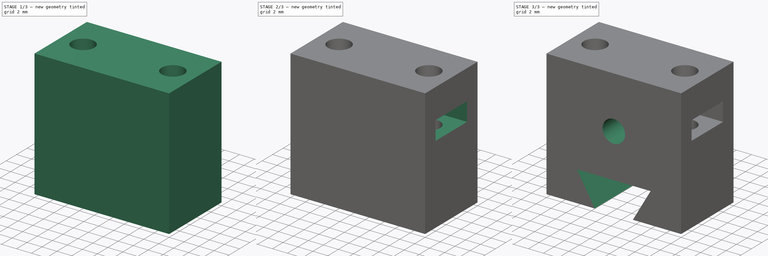
[diagram: build sequence overview — one tinted view per stage of 3, left to right]
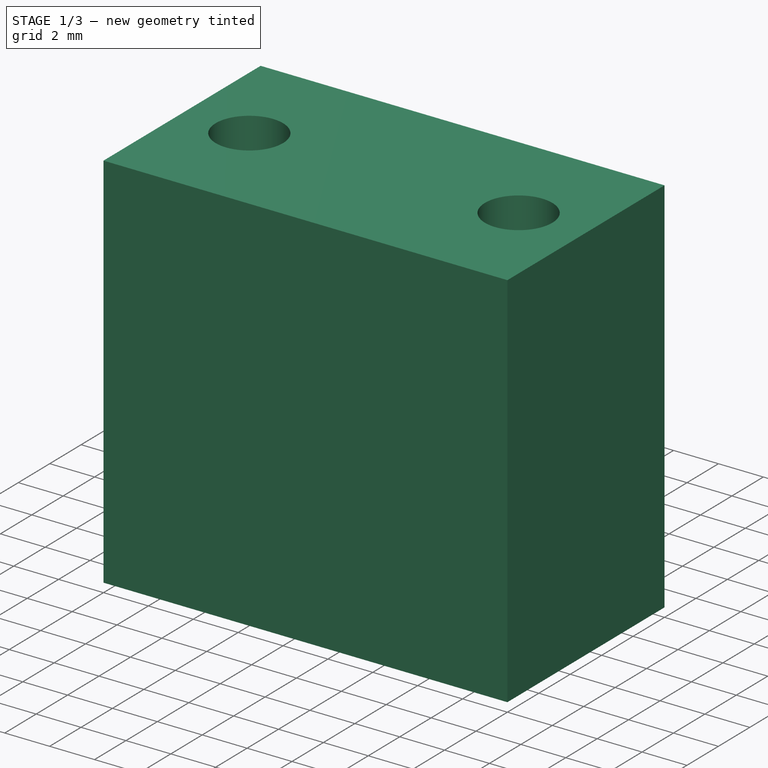
[diagram: stage 1 of 3 — iso view after this stage's code; geometry added in this stage tinted green]
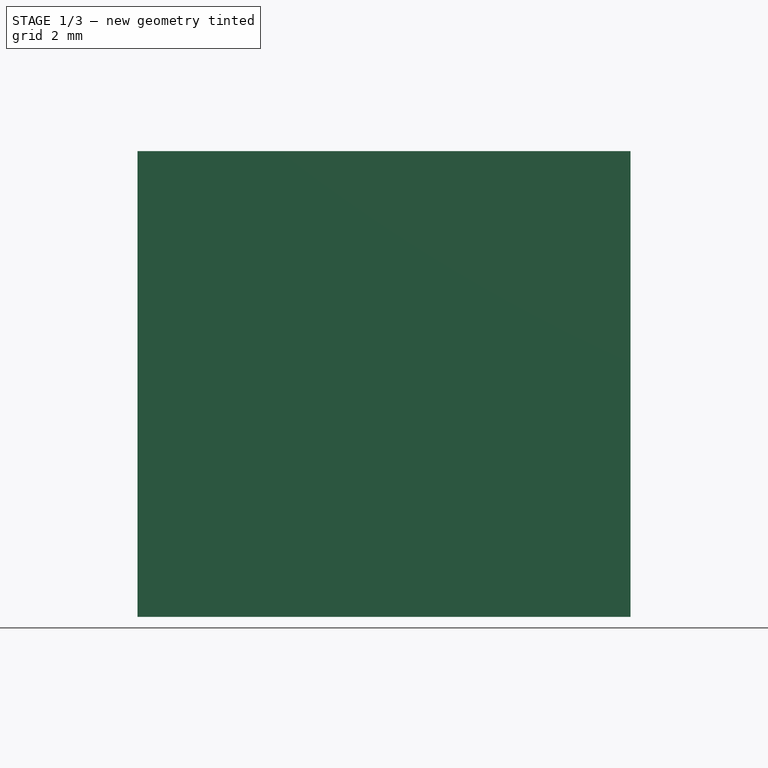
[diagram: stage 1 of 3 — front view after this stage's code; geometry added in this stage tinted green]
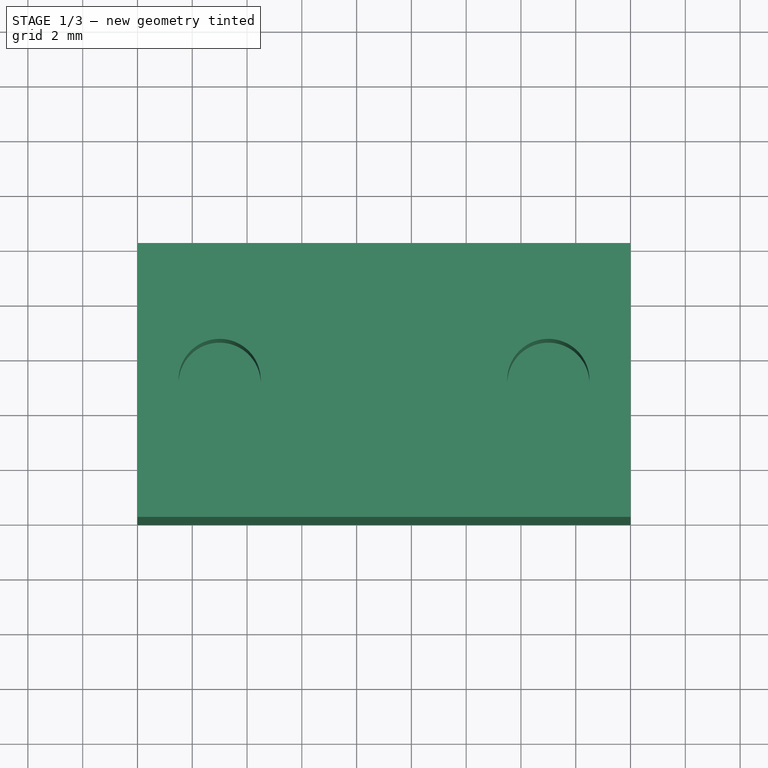
[diagram: stage 1 of 3 — top view after this stage's code; geometry added in this stage tinted green]
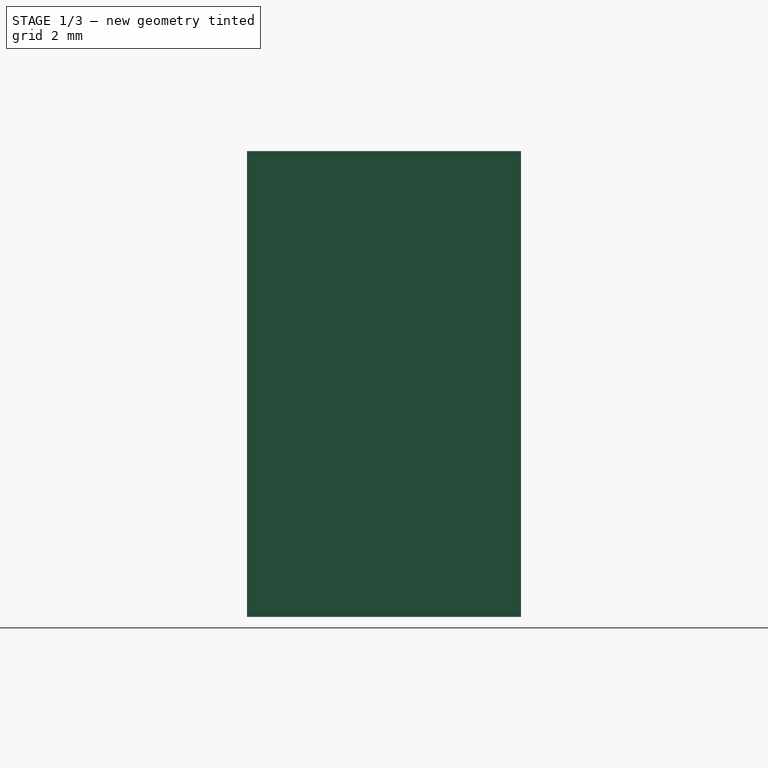
[diagram: stage 1 of 3 — right view after this stage's code; geometry added in this stage tinted green]
FCSTD DOCUMENT  (FreeCAD 0.18R13971 (Git))
Label: BedBeltClamp2
License: All rights reserved
LicenseURL: http://en.wikipedia.org/wiki/All_rights_reserved
objects: Sketcher::SketchObject×5, PartDesign::Pocket×4, PartDesign::Pad×1, PartDesign::Plane×1, PartDesign::Body×1
note: 17 computed .brp shape members not serialized (recipe doc carries the construction recipe); baked Part::Feature solids carry a one-line shape summary decoded from their .brp

FEATURE [Sketcher::SketchObject] Sketch  label="BaseSketch"
  MapMode = 5
  Support = -> [XY_Plane]
  sketch-geometry (4):
    g0: LineSegment StartX=0 StartY=0 StartZ=0 EndX=18 EndY=0 EndZ=0
    g1: LineSegment StartX=18 StartY=0 StartZ=0 EndX=18 EndY=10 EndZ=0
    g2: LineSegment StartX=18 StartY=10 StartZ=0 EndX=0 EndY=10 EndZ=0
    g3: LineSegment StartX=0 StartY=10 StartZ=0 EndX=0 EndY=0 EndZ=0
  constraints (11):
    c: Coincident(g0,g1)
    c: Coincident(g1,g2)
    c: Coincident(g2,g3)
    c: Coincident(g3,g0)
    c: Horizontal(g0)
    c: Horizontal(g2)
    c: Vertical(g1)
    c: Vertical(g3)
    c: Coincident(g0,g-1)
    c: Distance(g2) = 18
    c: Distance(g3) = 10
FEATURE [PartDesign::Pad] Pad  label="BasePad"
  Length = 17
  Length2 = 100
  Profile = -> Sketch
  Type = 0
FEATURE [PartDesign::Plane] DatumPlane  label="ScrewsHolesPlane"
  AttachmentOffset = pos=(0,0,-4) rot=(0,0,1;0rad)
  MapMode = 5
  Placement = pos=(0,0,13) rot=(0,0,1;0rad)
  Support = -> [Pad]
FEATURE [Sketcher::SketchObject] Sketch009  label="ScrewsHolesSketch"
  ExternalGeometry = -> [Pad]
  MapMode = 5
  Placement = pos=(0,0,13) rot=(0,0,1;0rad)
  Support = -> [DatumPlane]
  sketch-geometry (8):
    g0: LineSegment [constr] StartX=3 StartY=10 StartZ=0 EndX=3 EndY=5 EndZ=0
    g1: LineSegment [constr] StartX=3 StartY=5 StartZ=0 EndX=0 EndY=5 EndZ=0
    g2: LineSegment [constr] StartX=3 StartY=5 StartZ=0 EndX=3 EndY=0 EndZ=0
    g3: LineSegment [constr] StartX=15 StartY=10 StartZ=0 EndX=15 EndY=5 EndZ=0
    g4: LineSegment [constr] StartX=15 StartY=5 StartZ=0 EndX=18 EndY=5 EndZ=0
    g5: LineSegment [constr] StartX=15 StartY=5 StartZ=0 EndX=15 EndY=0 EndZ=0
    g6: Circle CenterX=3 CenterY=5 CenterZ=0 NormalX=0 NormalY=0 NormalZ=1 AngleXU=0 Radius=1.5
    g7: Circle CenterX=15 CenterY=5 CenterZ=0 NormalX=0 NormalY=0 NormalZ=1 AngleXU=0 Radius=1.5
  constraints (24):
    c: PointOnObject(g0,g-4)
    c: Vertical(g0)
    c: Coincident(g1,g0)
    c: PointOnObject(g1,g-3)
    c: Horizontal(g1)
    c: Coincident(g2,g0)
    c: PointOnObject(g2,g-6)
    c: PointOnObject(g3,g-4)
    c: Vertical(g3)
    c: Coincident(g4,g3)
    c: PointOnObject(g4,g-5)
    c: Horizontal(g4)
    c: Coincident(g5,g3)
    c: PointOnObject(g5,g-6)
    c: Coincident(g6,g0)
    c: Coincident(g7,g3)
    c: Equal(g6,g7)
    c: Radius(g6) = 1.5
    c: Equal(g4,g1)
    c: Distance(g1) = 3
    c: Parallel(g2,g5)
    c: Equal(g0,g3)
    c: Vertical(g2)
    c: Equal(g0,g2)
FEATURE [PartDesign::Pocket] Pocket  label="ScrewsPocket"
  BaseFeature = -> Pad
  Length = 8
  Length2 = 100
  Midplane = true
  Profile = -> Sketch009
  Type = 0
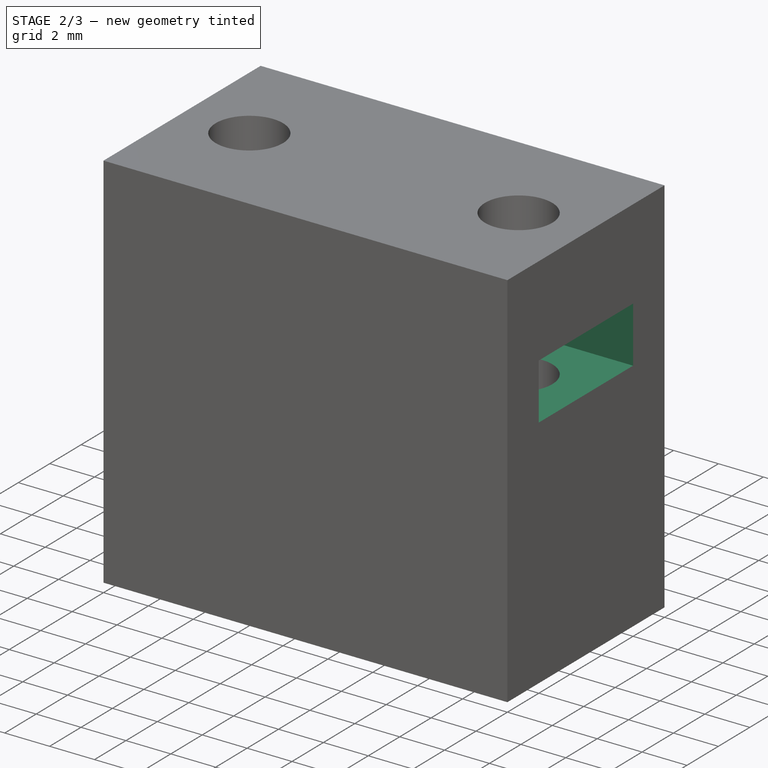
[diagram: stage 2 of 3 — iso view after this stage's code; geometry added in this stage tinted green]
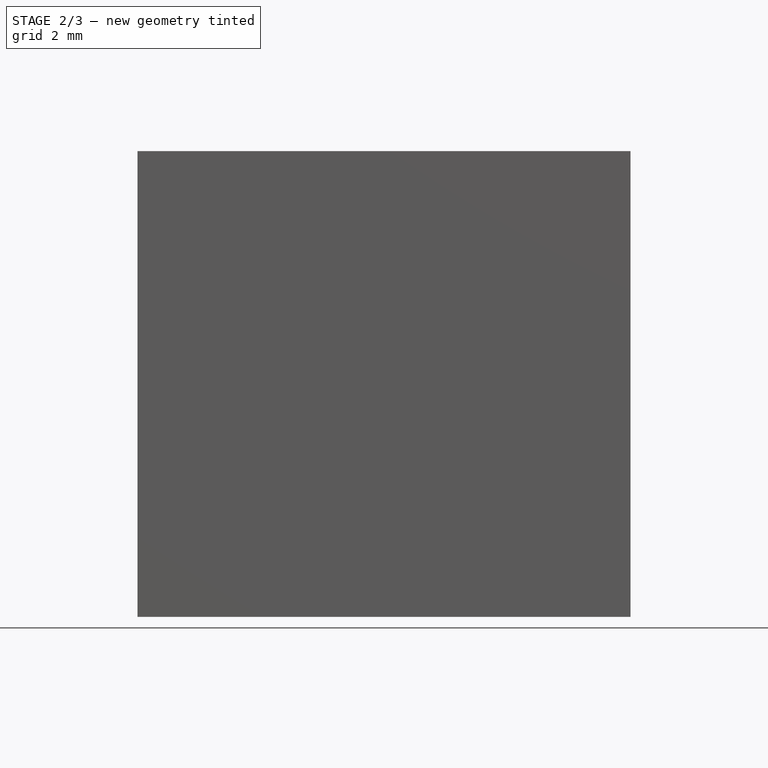
[diagram: stage 2 of 3 — front view after this stage's code; geometry added in this stage tinted green]
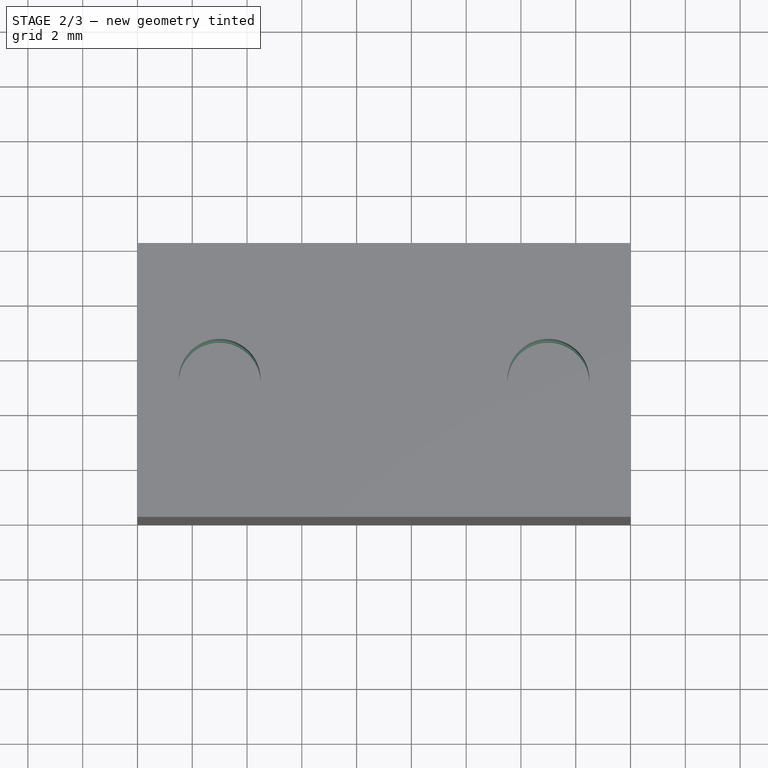
[diagram: stage 2 of 3 — top view after this stage's code; geometry added in this stage tinted green]
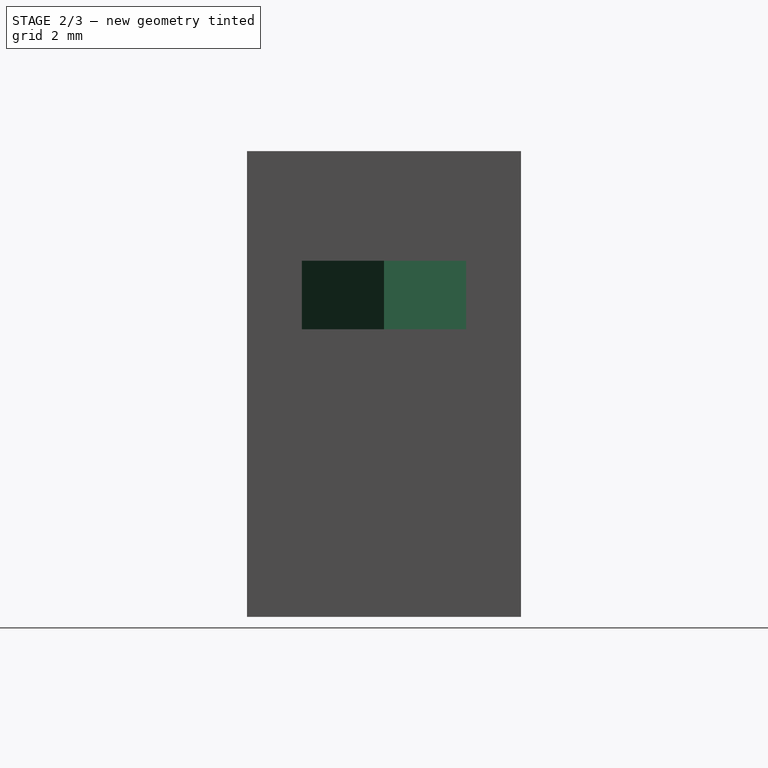
[diagram: stage 2 of 3 — right view after this stage's code; geometry added in this stage tinted green]
FEATURE [Sketcher::SketchObject] Sketch010  label="ScrewNutsSketch"
  ExternalGeometry = -> [Pocket]
  MapMode = 5
  Placement = pos=(0,0,13) rot=(0,0,1;0rad)
  Support = -> [DatumPlane]
  sketch-geometry (20):
    g0: LineSegment StartX=4.73205 StartY=2 StartZ=0 EndX=6.4641 EndY=5 EndZ=0
    g1: LineSegment StartX=6.4641 StartY=5 StartZ=0 EndX=4.73205 EndY=8 EndZ=0
    g2: LineSegment StartX=4.73205 StartY=8 StartZ=0 EndX=1.26795 EndY=8 EndZ=0
    g3: LineSegment [constr] StartX=1.26795 StartY=8 StartZ=0 EndX=-0.464102 EndY=5 EndZ=0
    g4: LineSegment [constr] StartX=-0.464102 StartY=5 StartZ=0 EndX=1.26795 EndY=2 EndZ=0
    g5: LineSegment StartX=1.26795 StartY=2 StartZ=0 EndX=4.73205 EndY=2 EndZ=0
    g6: Circle [constr] CenterX=3 CenterY=5 CenterZ=0 NormalX=0 NormalY=0 NormalZ=1 AngleXU=0 Radius=3.4641
    g7: LineSegment [constr] StartX=16.7321 StartY=2 StartZ=0 EndX=18.4641 EndY=5 EndZ=0
    g8: LineSegment [constr] StartX=18.4641 StartY=5 StartZ=0 EndX=16.7321 EndY=8 EndZ=0
    g9: LineSegment StartX=16.7321 StartY=8 StartZ=0 EndX=13.2679 EndY=8 EndZ=0
    g10: LineSegment StartX=13.2679 StartY=8 StartZ=0 EndX=11.5359 EndY=5 EndZ=0
    g11: LineSegment StartX=11.5359 StartY=5 StartZ=0 EndX=13.2679 EndY=2 EndZ=0
    g12: LineSegment StartX=13.2679 StartY=2 StartZ=0 EndX=16.7321 EndY=2 EndZ=0
    g13: Circle [constr] CenterX=15 CenterY=5 CenterZ=0 NormalX=0 NormalY=0 NormalZ=1 AngleXU=0 Radius=3.4641
    g14: LineSegment StartX=16.7321 StartY=8 StartZ=0 EndX=18 EndY=8 EndZ=0
    g15: LineSegment StartX=16.7321 StartY=2 StartZ=0 EndX=18 EndY=2 EndZ=0
    g16: LineSegment StartX=1.26795 StartY=2 StartZ=0 EndX=0 EndY=2 EndZ=0
    g17: LineSegment StartX=1.26795 StartY=8 StartZ=0 EndX=0 EndY=8 EndZ=0
    g18: LineSegment StartX=18 StartY=8 StartZ=0 EndX=18 EndY=2 EndZ=0
    g19: LineSegment StartX=0 StartY=8 StartZ=0 EndX=0 EndY=2 EndZ=0
  constraints (48):
    c: Coincident(g0,g1)
    c: Coincident(g1,g2)
    c: Coincident(g2,g3)
    c: Coincident(g3,g4)
    c: Coincident(g4,g5)
    c: Coincident(g5,g0)
    c: Equal(g0, g1-g5) x5
    c: PointOnObject(g0,g6)
    c: PointOnObject(g1,g6)
    c: PointOnObject(g2,g6)
    c: PointOnObject(g3,g6)
    c: PointOnObject(g4,g6)
    c: PointOnObject(g5,g6)
    c: Coincident(g6,g-7)
    c: Coincident(g7,g8)
    c: Coincident(g8,g9)
    c: Coincident(g9,g10)
    c: Coincident(g10,g11)
    c: Coincident(g11,g12)
    c: Coincident(g12,g7)
    c: Equal(g7, g8-g12) x5
    c: PointOnObject(g7,g13)
    c: PointOnObject(g8,g13)
    c: PointOnObject(g9,g13)
    c: PointOnObject(g10,g13)
    c: PointOnObject(g11,g13)
    c: PointOnObject(g12,g13)
    c: Coincident(g13,g-8)
    c: Horizontal(g9)
    c: Horizontal(g2)
    c: Equal(g1,g8)
    c: Distance(g0,g2) = 6
    c: Coincident(g14,g8)
    c: PointOnObject(g14,g-4)
    c: Horizontal(g14)
    c: Coincident(g15,g7)
    c: PointOnObject(g15,g-4)
    c: Horizontal(g15)
    c: Coincident(g16,g4)
    c: PointOnObject(g16,g-6)
    c: Horizontal(g16)
    c: Coincident(g17,g2)
    c: Horizontal(g17)
    c: PointOnObject(g17,g-6)
    c: Coincident(g18,g14)
    c: Coincident(g18,g15)
    c: Coincident(g19,g17)
    c: Coincident(g19,g16)
FEATURE [PartDesign::Pocket] Pocket001  label="ScrewNutsPocket"
  BaseFeature = -> Pocket
  Length = 2.5
  Length2 = 100
  Profile = -> Sketch010
  Type = 0
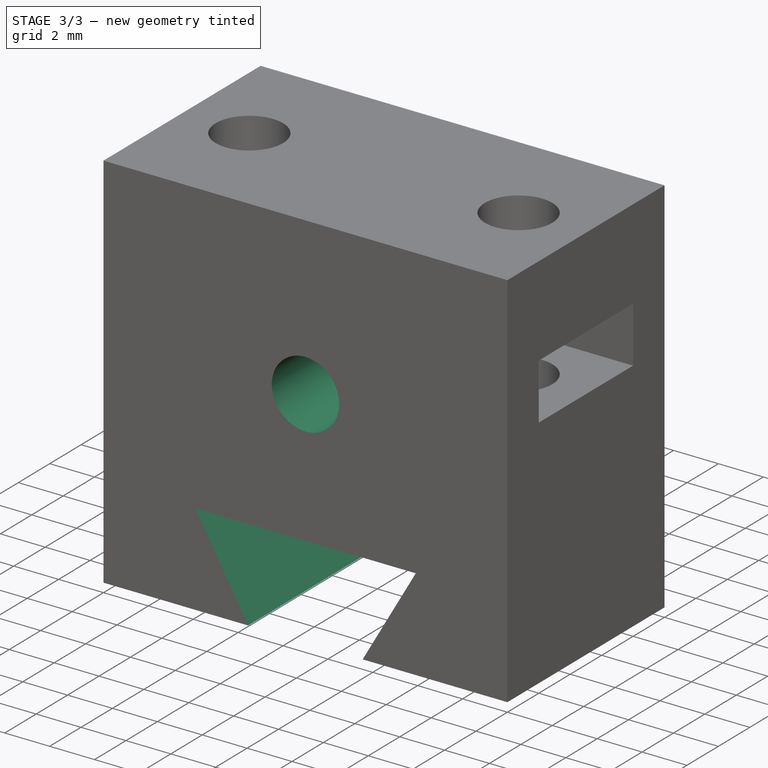
[diagram: stage 3 of 3 — iso view after this stage's code; geometry added in this stage tinted green]
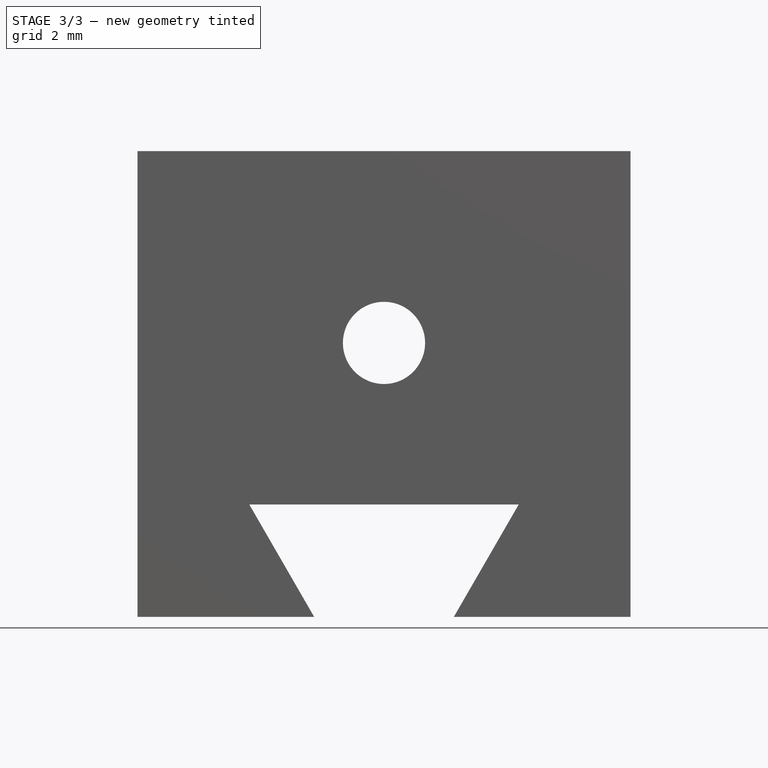
[diagram: stage 3 of 3 — front view after this stage's code; geometry added in this stage tinted green]
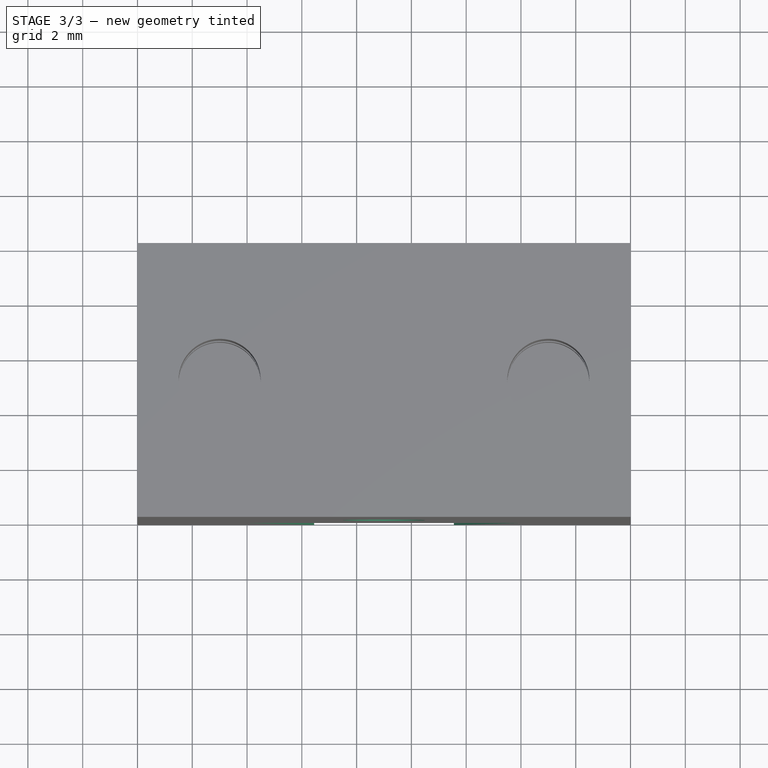
[diagram: stage 3 of 3 — top view after this stage's code; geometry added in this stage tinted green]
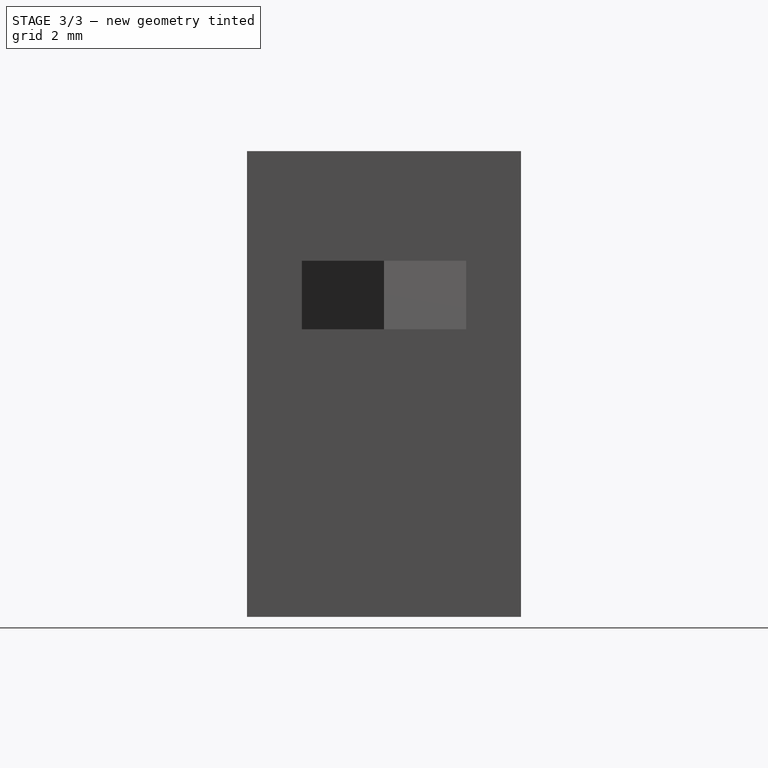
[diagram: stage 3 of 3 — right view after this stage's code; geometry added in this stage tinted green]
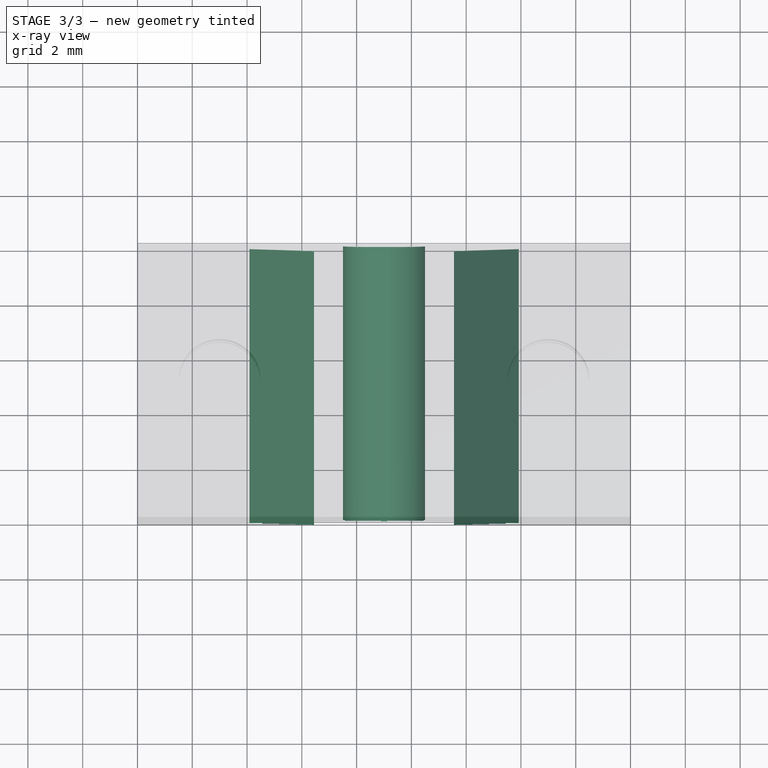
[diagram: stage 3 of 3 — x-ray composite at the top view; earlier geometry ghosted, this stage's added geometry solid]
FEATURE [Sketcher::SketchObject] Sketch011  label="RailSketch"
  ExternalGeometry = -> [Pocket001]
  MapMode = 5
  Placement = pos=(0,0,0) rot=(1,0,0;1.5708rad)
  Support = -> [XZ_Plane]
  sketch-geometry (6):
    g0: LineSegment [constr] StartX=0 StartY=0 StartZ=0 EndX=6.45 EndY=0 EndZ=0
    g1: LineSegment StartX=6.45 StartY=0 StartZ=0 EndX=11.55 EndY=0 EndZ=0
    g2: LineSegment [constr] StartX=11.55 StartY=0 StartZ=0 EndX=18 EndY=0 EndZ=0
    g3: LineSegment StartX=6.45 StartY=0 StartZ=0 EndX=4.08286 EndY=4.1 EndZ=0
    g4: LineSegment StartX=4.08286 StartY=4.1 StartZ=0 EndX=13.9171 EndY=4.1 EndZ=0
    g5: LineSegment StartX=13.9171 StartY=4.1 StartZ=0 EndX=11.55 EndY=0 EndZ=0
  constraints (16):
    c: Coincident(g0,g-1)
    c: PointOnObject(g0,g-1)
    c: Coincident(g1,g0)
    c: PointOnObject(g1,g-1)
    c: Coincident(g2,g1)
    c: Coincident(g2,g-3)
    c: Coincident(g3,g0)
    c: Coincident(g4,g3)
    c: Horizontal(g4)
    c: Coincident(g5,g4)
    c: Coincident(g5,g1)
    c: Distance(g1) = 5.1
    c: Distance(g0,g4) = 4.1
    c: Angle(g3,g0) = 1.0472
    c: Equal(g3,g5)
    c: Equal(g0,g2)
FEATURE [PartDesign::Pocket] Pocket002  label="RailPocket"
  BaseFeature = -> Pocket001
  Length = 5
  Length2 = 100
  Profile = -> Sketch011
  Type = 1
FEATURE [Sketcher::SketchObject] Sketch012  label="ScrewSketch"
  ExternalGeometry = -> [Pocket002]
  MapMode = 5
  Placement = pos=(0,0,0) rot=(1,0,0;1.5708rad)
  Support = -> [XZ_Plane]
  sketch-geometry (4):
    g0: LineSegment [constr] StartX=18 StartY=0 StartZ=0 EndX=9 EndY=0 EndZ=0
    g1: LineSegment [constr] StartX=9 StartY=0 StartZ=0 EndX=0 EndY=0 EndZ=0
    g2: LineSegment [constr] StartX=9 StartY=0 StartZ=0 EndX=9 EndY=10 EndZ=0
    g3: Circle CenterX=9 CenterY=10 CenterZ=0 NormalX=0 NormalY=0 NormalZ=1 AngleXU=0 Radius=1.5
  constraints (10):
    c: Coincident(g0,g-3)
    c: PointOnObject(g0,g-1)
    c: Coincident(g1,g0)
    c: Coincident(g1,g-1)
    c: Coincident(g2,g0)
    c: Vertical(g2)
    c: Distance(g2) = 10
    c: Equal(g1,g0)
    c: Coincident(g3,g2)
    c: Radius(g3) = 1.5
FEATURE [PartDesign::Pocket] Pocket003  label="ScrewPocket"
  BaseFeature = -> Pocket002
  Length = 5
  Length2 = 100
  Profile = -> Sketch012
  Type = 1
FEATURE [PartDesign::Body] Body  label="Clamp2"
  Group = -> [Sketch,Pad,DatumPlane,Sketch009,Pocket,Sketch010,Pocket001,Sketch011,Pocket002,Sketch012,Pocket003]
  Origin = -> Origin
  Tip = -> Pocket003
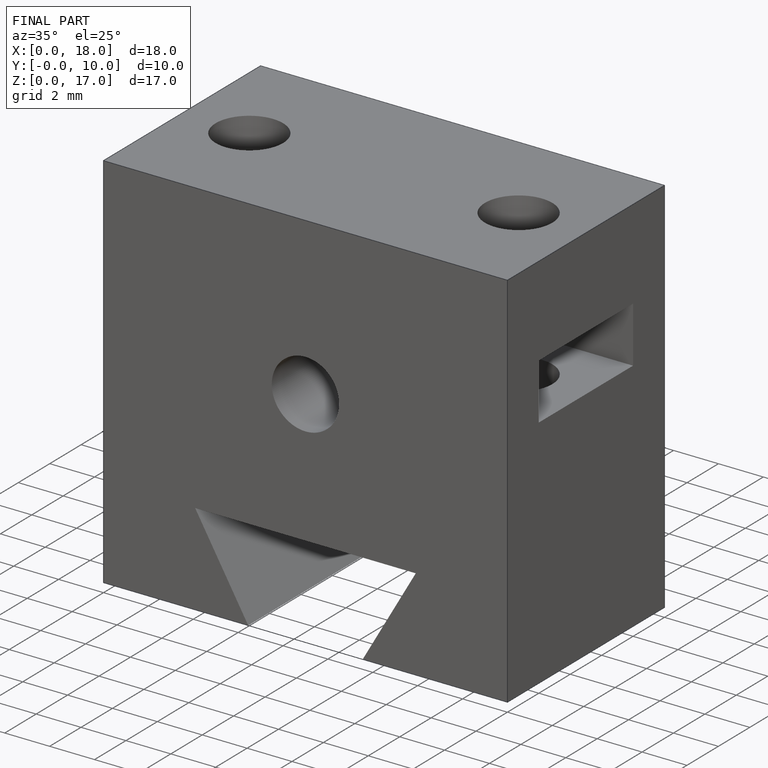
[diagram: finished part — iso view with bounding-box wireframe]
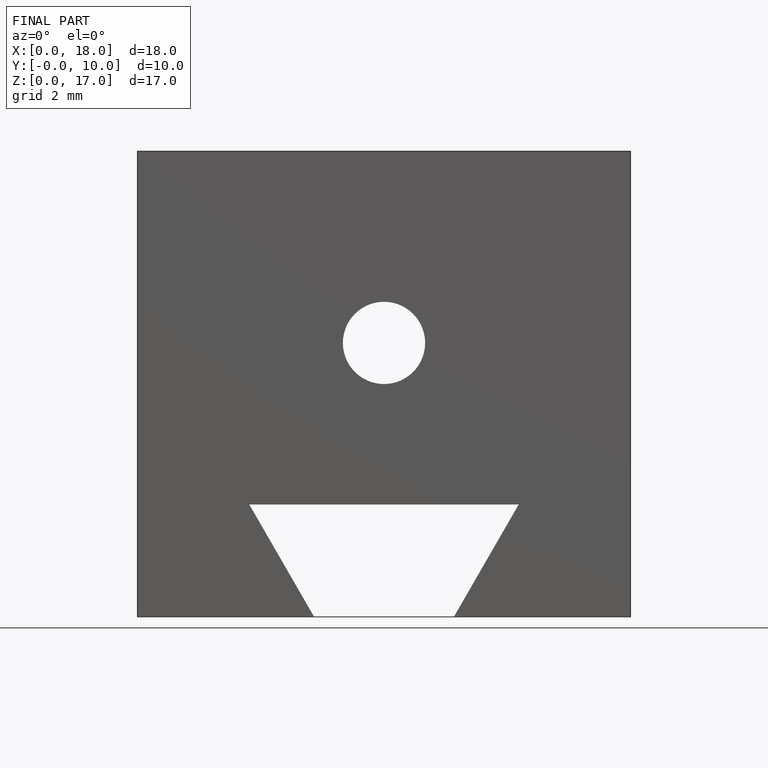
[diagram: finished part — front view with bounding-box wireframe]
